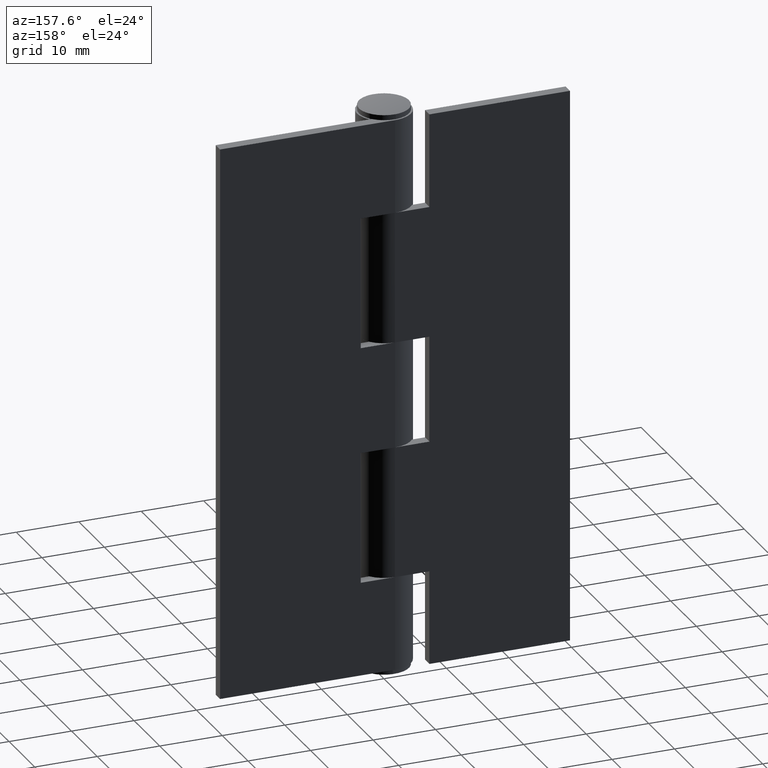
[diagram: clean part render]
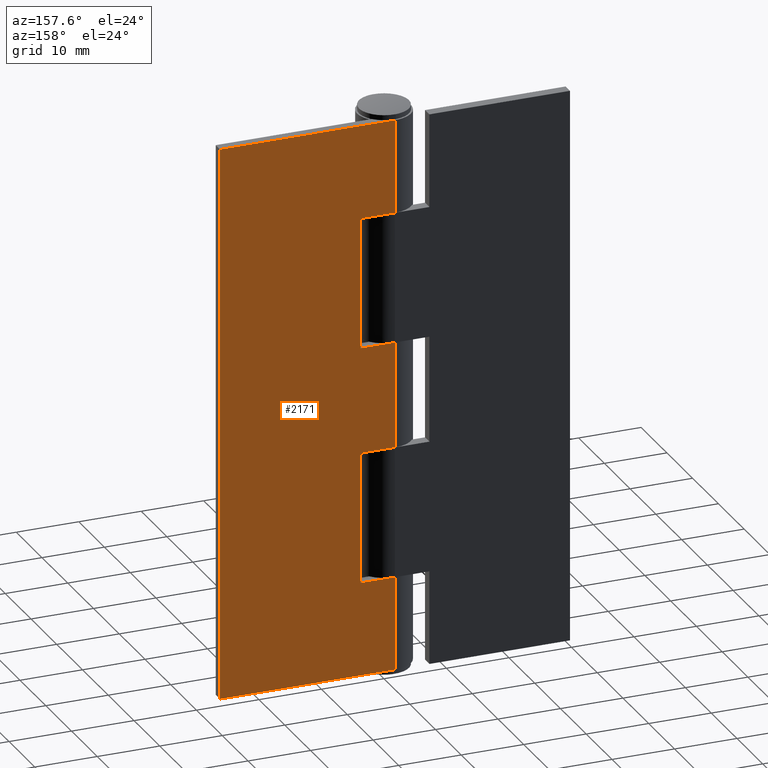
[diagram: same view with one face highlighted and labeled with its STEP entity id]
A machine part, auxiliary view. The second image highlights one B-rep face of the part: STEP entity #2171.
In plain terms, the highlighted face is a freeform B-spline surface patch.
Its self-contained STEP definition (entity closure, byte-faithful):
#1670=CARTESIAN_POINT('',(0.0,4.299999000000000,74.0));
#1671=VERTEX_POINT('',#1670);
#1705=CARTESIAN_POINT('',(5.500000000000000,4.299999000000000,74.0));
#1706=VERTEX_POINT('',#1705);
#1707=CARTESIAN_POINT('',(5.500000000000000,4.299999000000000,74.0));
#1708=CARTESIAN_POINT('',(0.0,4.299999000000000,74.0));
#1709=QUASI_UNIFORM_CURVE('',1,(#1707,#1708),.UNSPECIFIED.,.F.,.U.);
#1710=EDGE_CURVE('',#1706,#1671,#1709,.T.);
#1727=CARTESIAN_POINT('',(5.500000000000000,4.299999000000000,53.0));
#1728=VERTEX_POINT('',#1727);
#1729=CARTESIAN_POINT('',(5.500000000000000,4.299999000000000,53.0));
#1730=CARTESIAN_POINT('',(5.500000000000000,4.299999000000000,74.0));
#1731=QUASI_UNIFORM_CURVE('',1,(#1729,#1730),.UNSPECIFIED.,.F.,.U.);
#1732=EDGE_CURVE('',#1728,#1706,#1731,.T.);
#1749=CARTESIAN_POINT('',(0.0,4.299999000000000,53.0));
#1750=VERTEX_POINT('',#1749);
#1751=CARTESIAN_POINT('',(0.0,4.299999000000000,53.0));
#1752=CARTESIAN_POINT('',(5.500000000000000,4.299999000000000,53.0));
#1753=QUASI_UNIFORM_CURVE('',1,(#1751,#1752),.UNSPECIFIED.,.F.,.U.);
#1754=EDGE_CURVE('',#1750,#1728,#1753,.T.);
#1802=CARTESIAN_POINT('',(0.0,4.299999000000000,36.0));
#1803=VERTEX_POINT('',#1802);
#1837=CARTESIAN_POINT('',(5.500000000000000,4.299999000000000,36.0));
#1838=VERTEX_POINT('',#1837);
#1839=CARTESIAN_POINT('',(5.500000000000000,4.299999000000000,36.0));
#1840=CARTESIAN_POINT('',(0.0,4.299999000000000,36.0));
#1841=QUASI_UNIFORM_CURVE('',1,(#1839,#1840),.UNSPECIFIED.,.F.,.U.);
#1842=EDGE_CURVE('',#1838,#1803,#1841,.T.);
#1859=CARTESIAN_POINT('',(5.500000000000000,4.299999000000000,15.0));
#1860=VERTEX_POINT('',#1859);
#1861=CARTESIAN_POINT('',(5.500000000000000,4.299999000000000,15.0));
#1862=CARTESIAN_POINT('',(5.500000000000000,4.299999000000000,36.0));
#1863=QUASI_UNIFORM_CURVE('',1,(#1861,#1862),.UNSPECIFIED.,.F.,.U.);
#1864=EDGE_CURVE('',#1860,#1838,#1863,.T.);
#1881=CARTESIAN_POINT('',(0.0,4.299999000000000,15.0));
#1882=VERTEX_POINT('',#1881);
#1883=CARTESIAN_POINT('',(0.0,4.299999000000000,15.0));
#1884=CARTESIAN_POINT('',(5.500000000000000,4.299999000000000,15.0));
#1885=QUASI_UNIFORM_CURVE('',1,(#1883,#1884),.UNSPECIFIED.,.F.,.U.);
#1886=EDGE_CURVE('',#1882,#1860,#1885,.T.);
#1930=CARTESIAN_POINT('',(-7.898711E-016,4.300000000000000,0.0));
#1931=VERTEX_POINT('',#1930);
#1932=CARTESIAN_POINT('',(28.0,4.299999000000000,0.0));
#1933=VERTEX_POINT('',#1932);
#1934=CARTESIAN_POINT('',(-7.898711E-016,4.300000000000000,0.0));
#1935=CARTESIAN_POINT('',(28.0,4.299999000000000,0.0));
#1936=QUASI_UNIFORM_CURVE('',1,(#1934,#1935),.UNSPECIFIED.,.F.,.U.);
#1937=EDGE_CURVE('',#1931,#1933,#1936,.T.);
#1986=CARTESIAN_POINT('',(-7.898711E-016,4.300000000000000,89.0));
#1987=VERTEX_POINT('',#1986);
#1988=CARTESIAN_POINT('',(28.0,4.299999000000000,89.0));
#1989=VERTEX_POINT('',#1988);
#1990=CARTESIAN_POINT('',(-7.898711E-016,4.300000000000000,89.0));
#1991=CARTESIAN_POINT('',(28.0,4.299999000000000,89.0));
#1992=QUASI_UNIFORM_CURVE('',1,(#1990,#1991),.UNSPECIFIED.,.F.,.U.);
#1993=EDGE_CURVE('',#1987,#1989,#1992,.T.);
#2043=CARTESIAN_POINT('',(28.0,4.299999000000000,89.0));
#2044=CARTESIAN_POINT('',(28.0,4.299999000000000,0.0));
#2045=QUASI_UNIFORM_CURVE('',1,(#2043,#2044),.UNSPECIFIED.,.F.,.U.);
#2046=EDGE_CURVE('',#1989,#1933,#2045,.T.);
#2077=CARTESIAN_POINT('',(0.0,4.299999000000000,15.0));
#2078=CARTESIAN_POINT('',(-7.898711E-016,4.300000000000000,0.0));
#2079=QUASI_UNIFORM_CURVE('',1,(#2077,#2078),.UNSPECIFIED.,.F.,.U.);
#2080=EDGE_CURVE('',#1882,#1931,#2079,.T.);
#2108=CARTESIAN_POINT('',(-7.898711E-016,4.300000000000000,89.0));
#2109=CARTESIAN_POINT('',(0.0,4.299999000000000,74.0));
#2110=QUASI_UNIFORM_CURVE('',1,(#2108,#2109),.UNSPECIFIED.,.F.,.U.);
#2111=EDGE_CURVE('',#1987,#1671,#2110,.T.);
#2143=CARTESIAN_POINT('',(0.0,4.299999000000000,53.0));
#2144=CARTESIAN_POINT('',(0.0,4.299999000000000,36.0));
#2145=QUASI_UNIFORM_CURVE('',1,(#2143,#2144),.UNSPECIFIED.,.F.,.U.);
#2146=EDGE_CURVE('',#1750,#1803,#2145,.T.);
#2152=CARTESIAN_POINT('',(-1.398599945730568,4.299999000000000,-4.445549827500730));
#2153=CARTESIAN_POINT('',(-1.398599945730568,4.299999000000000,93.445552214666776));
#2154=CARTESIAN_POINT('',(29.398600696749099,4.299999000000000,-4.445549827500730));
#2155=CARTESIAN_POINT('',(29.398600696749099,4.299999000000000,93.445552214666776));
#2156=B_SPLINE_SURFACE_WITH_KNOTS('',1,1,((#2152,#2154),(#2153,#2155)),.UNSPECIFIED.,.F.,.F.,.U.,(2,2),(2,2),(0.0,97.891102042167503),(0.0,30.797200642479659),.UNSPECIFIED.);
#2157=ORIENTED_EDGE('',*,*,#2146,.F.);
#2158=ORIENTED_EDGE('',*,*,#1754,.T.);
#2159=ORIENTED_EDGE('',*,*,#1732,.T.);
#2160=ORIENTED_EDGE('',*,*,#1710,.T.);
#2161=ORIENTED_EDGE('',*,*,#2111,.F.);
#2162=ORIENTED_EDGE('',*,*,#1993,.T.);
#2163=ORIENTED_EDGE('',*,*,#2046,.T.);
#2164=ORIENTED_EDGE('',*,*,#1937,.F.);
#2165=ORIENTED_EDGE('',*,*,#2080,.F.);
#2166=ORIENTED_EDGE('',*,*,#1886,.T.);
#2167=ORIENTED_EDGE('',*,*,#1864,.T.);
#2168=ORIENTED_EDGE('',*,*,#1842,.T.);
#2169=EDGE_LOOP('',(#2157,#2158,#2159,#2160,#2161,#2162,#2163,#2164,#2165,#2166,#2167,#2168));
#2170=FACE_OUTER_BOUND('',#2169,.T.);
#2171=ADVANCED_FACE('',(#2170),#2156,.T.);